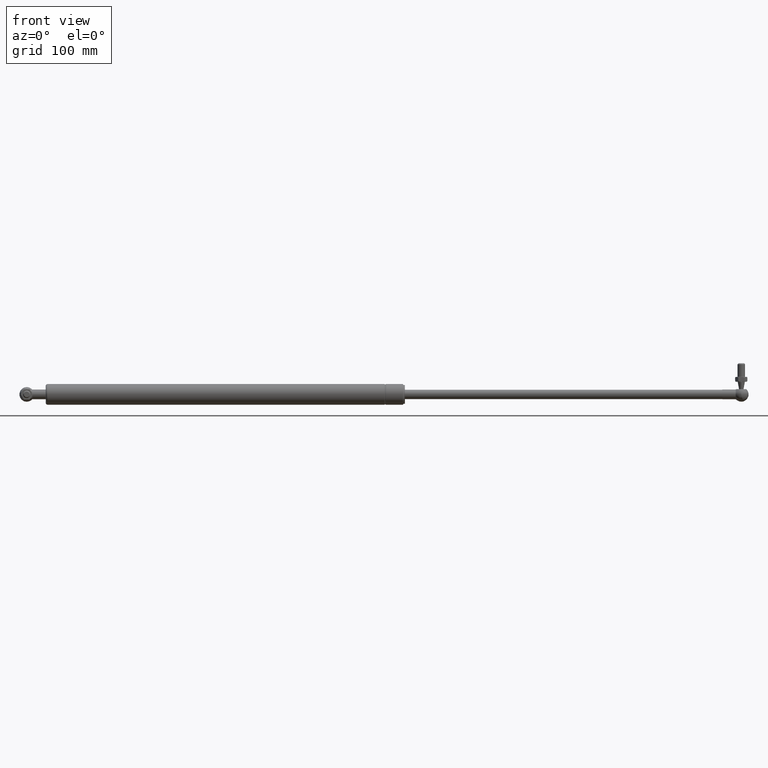
[diagram: clean part render]
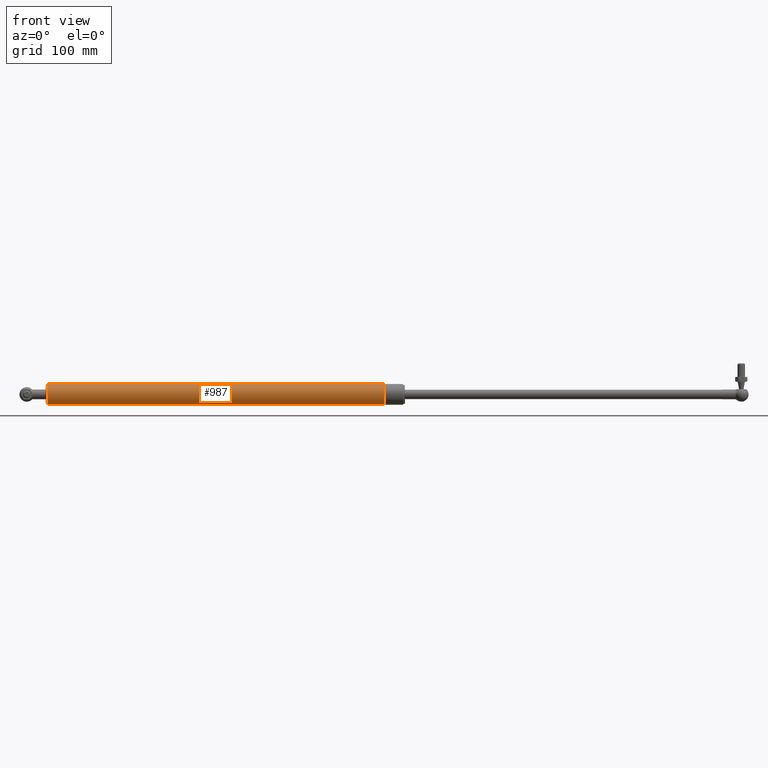
[diagram: same view with one face highlighted and labeled with its STEP entity id]
A machine part, front view. The second image highlights one B-rep face of the part: STEP entity #987.
In plain terms, the highlighted cylindrical surface (bore or boss wall) has radius 11 mm, axis along (1, 0, 0).
Its self-contained STEP definition (entity closure, byte-faithful):
#218=FACE_BOUND('',#341,.T.);
#249=CYLINDRICAL_SURFACE('',#1072,11.);
#267=FACE_OUTER_BOUND('',#340,.T.);
#340=EDGE_LOOP('',(#715));
#341=EDGE_LOOP('',(#716));
#431=CIRCLE('',#1061,11.);
#437=CIRCLE('',#1070,11.);
#480=VERTEX_POINT('',#1420);
#486=VERTEX_POINT('',#1435);
#577=EDGE_CURVE('',#480,#480,#431,.T.);
#583=EDGE_CURVE('',#486,#486,#437,.T.);
#715=ORIENTED_EDGE('',*,*,#577,.F.);
#716=ORIENTED_EDGE('',*,*,#583,.F.);
#987=ADVANCED_FACE('',(#267,#218),#249,.T.);
#1061=AXIS2_PLACEMENT_3D('',#1421,#1176,#1177);
#1070=AXIS2_PLACEMENT_3D('',#1436,#1194,#1195);
#1072=AXIS2_PLACEMENT_3D('',#1438,#1198,#1199);
#1176=DIRECTION('center_axis',(-1.,0.,0.));
#1177=DIRECTION('ref_axis',(0.,0.,1.));
#1194=DIRECTION('center_axis',(1.,0.,0.));
#1195=DIRECTION('ref_axis',(0.,1.22464679914735E-16,-1.));
#1198=DIRECTION('center_axis',(-1.,0.,0.));
#1199=DIRECTION('ref_axis',(0.,0.,1.));
#1420=CARTESIAN_POINT('',(21.5,0.,11.));
#1421=CARTESIAN_POINT('Origin',(21.5,0.,0.));
#1435=CARTESIAN_POINT('',(380.498692808224,-2.69422295812418E-15,11.));
#1436=CARTESIAN_POINT('Origin',(380.498692808224,0.,0.));
#1438=CARTESIAN_POINT('Origin',(201.999346404112,0.,0.));